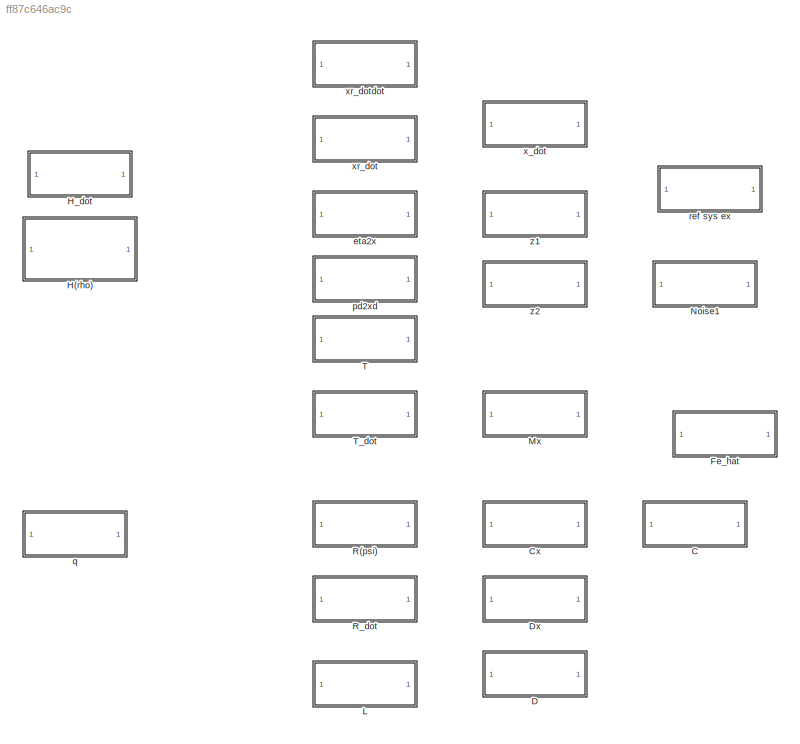
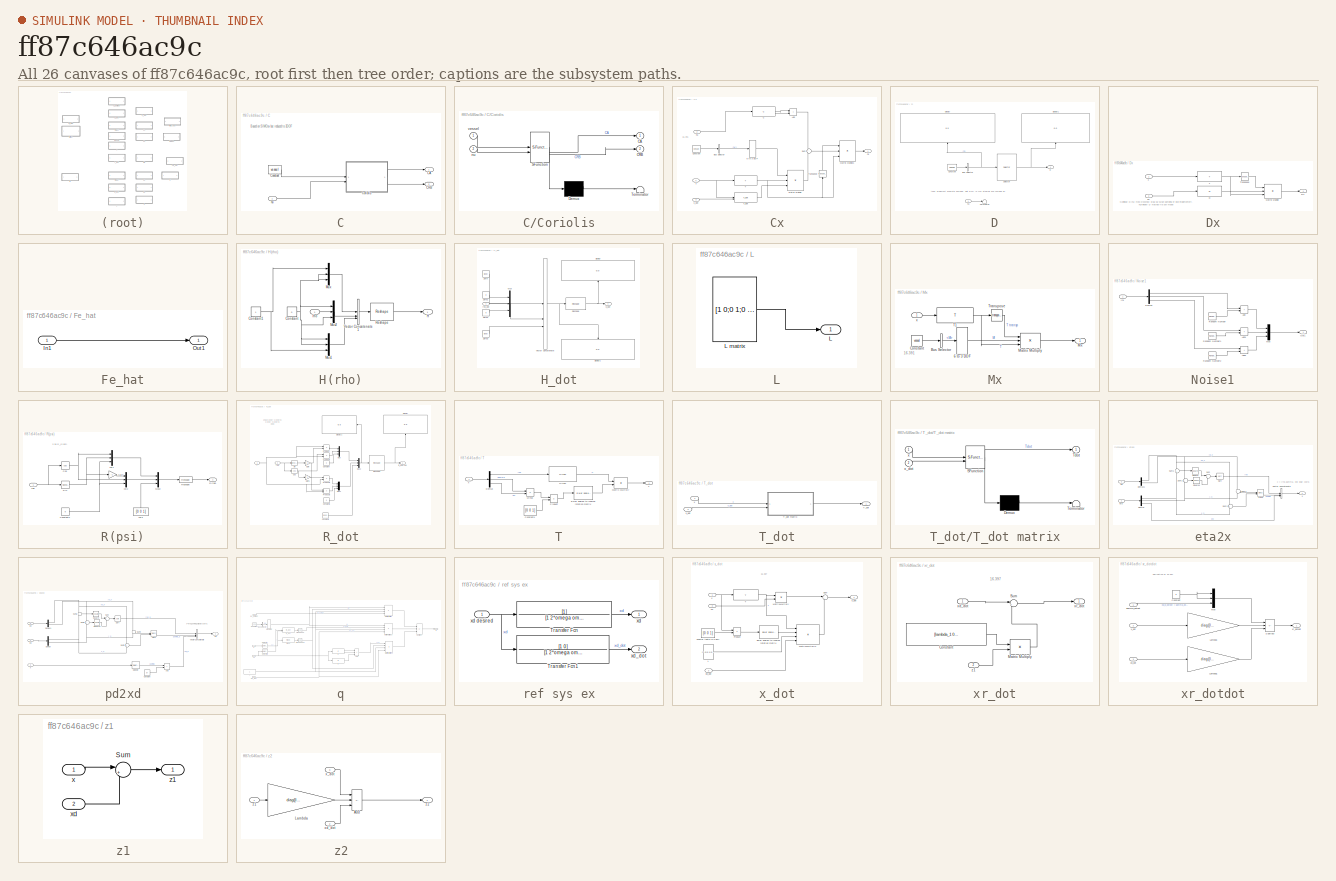
[diagram: thumbnail index - all 26 canvases of the model, root first then tree order]
MODEL slx_ff87c646ac9c
KIND library
CONFIG AbsTol = auto
CONFIG EnableMultiTasking = off
CONFIG FixedStep = auto
CONFIG MaxStep = auto
CONFIG MinStep = auto
CONFIG RelTol = 1e-3
CONFIG SampleTimeConstraint = Unconstrained
CONFIG SolverName = VariableStepAuto
CONFIG StartTime = 0.0
CONFIG StopTime = 10.0
BLOCK [SubSystem] C
BLOCK [Outport] C/CA
BLOCK [Outport] C/CRB
  Port = 2
BLOCK [Constant] C/Constant
  OutDataTypeStr = Bus: slBus1
  Value = vessel
BLOCK [SubSystem] C/Coriolis
  ErrorFcn = Stateflow.Translate.translate
  PermitHierarchicalResolution = ExplicitOnly
  SFBlockType = MATLAB Function
  TreatAsAtomicUnit = on
BLOCK [Demux] C/Coriolis/ Demux 
  Outputs = 1
BLOCK [S-Function] C/Coriolis/ SFunction 
  EnableBusSupport = off
  FunctionName = sf_sfun
  PortCounts = [2 3]
  SFcnIsStateOwnerBlock = off
  SFunctionDeploymentMode = off
  Tag = Stateflow S-Function 2
BLOCK [Terminator] C/Coriolis/ Terminator 
BLOCK [Outport] C/Coriolis/CA
BLOCK [Outport] C/Coriolis/CRB
  Port = 2
BLOCK [Inport] C/Coriolis/nu
  Port = 2
BLOCK [Inport] C/Coriolis/vessel
BLOCK [Inport] C/nu
BLOCK [SubSystem] Cx
BLOCK [Reference] Cx/ T  REF=$bdroot/T
  SourceBlock = $bdroot/T
  SourceType = SubSystem
BLOCK [Selector] Cx/6 to 3 DOF
  IndexOptions = Index vector (dialog),Index vector (dialog)
  Indices = [1 2 6],[1 2 6]
  InputPortWidth = 6
  NumberOfDimensions = 2
  OutputSizes = 1,1
BLOCK [Sum] Cx/Add
  IconShape = rectangular
BLOCK [BusSelector] Cx/Bus Selector
  OutputSignals = M
BLOCK [Reference] Cx/C  REF=$bdroot/C
  SourceBlock = $bdroot/C
  SourceType = SubSystem
BLOCK [Constant] Cx/Constant
  OutDataTypeStr = Bus: slBus1
  Value = vessel
BLOCK [Outport] Cx/Cx
BLOCK [Product] Cx/Matrix Multiply
  Inputs = */*
  Multiplication = Matrix(*)
BLOCK [Product] Cx/Matrix Multiply1
  Inputs = /*/
  Multiplication = Matrix(*)
BLOCK [Sum] Cx/Sum
  Inputs = +-
BLOCK [Reference] Cx/T_dot  REF=$bdroot/T_dot
  SourceBlock = $bdroot/T_dot
  SourceType = SubSystem
BLOCK [Math] Cx/Transpose
  NameLocation = right
  Operator = transpose
BLOCK [Inport] Cx/nu
  Port = 2
  PortDimensions = 3
BLOCK [Inport] Cx/x
BLOCK [Inport] Cx/x_dot
  Port = 3
BLOCK [SubSystem] D
BLOCK [BusSelector] D/Bus Selector
  OutputSignals = D
BLOCK [Constant] D/Constant
  OutDataTypeStr = Bus: slBus1
  Value = vessel
BLOCK [Outport] D/D
BLOCK [Display] D/Display
  Decimation = 1
  NameLocation = right
BLOCK [Display] D/Display1
  Decimation = 1
  NameLocation = right
BLOCK [Selector] D/Selector
  IndexOptions = Index vector (dialog),Index vector (dialog)
  Indices = [1 2 6],[1 2 6]
  InputPortWidth = 3
  NumberOfDimensions = 2
  OutputSizes = 1,1
BLOCK [Terminator] D/Terminator
BLOCK [Inport] D/nu
BLOCK [SubSystem] Dx
BLOCK [Reference] Dx/D  REF=$bdroot/D
  SourceBlock = $bdroot/D
  SourceType = SubSystem
BLOCK [Outport] Dx/Dx
BLOCK [Product] Dx/Matrix Multiply
  Inputs = /*/
  Multiplication = Matrix(*)
BLOCK [Reference] Dx/T  REF=$bdroot/T
  SourceBlock = $bdroot/T
  SourceType = SubSystem
BLOCK [Math] Dx/Transpose
  Operator = transpose
BLOCK [Inport] Dx/nu
  Port = 2
BLOCK [Inport] Dx/x
BLOCK [SubSystem] Fe_hat
BLOCK [Inport] Fe_hat/In1
BLOCK [Outport] Fe_hat/Out1
BLOCK [SubSystem] H(rho)
BLOCK [Constant] H(rho)/Constant
  Value = 0
BLOCK [Constant] H(rho)/Constant1
BLOCK [Outport] H(rho)/H
BLOCK [Mux] H(rho)/Mux
  DisplayOption = bar
  Inputs = 3
BLOCK [Mux] H(rho)/Mux1
  DisplayOption = bar
  Inputs = 3
BLOCK [Mux] H(rho)/Mux2
  DisplayOption = bar
  Inputs = 3
BLOCK [Reshape] H(rho)/Reshape
  OutputDimensionality = Customize
  OutputDimensions = [3,3]
BLOCK [Concatenate] H(rho)/Vector Concatenate1
  NumInputs = 3
BLOCK [Inport] H(rho)/rho
BLOCK [SubSystem] H_dot
BLOCK [Display] H_dot/Display
  Decimation = 1
  NameLocation = right
BLOCK [Display] H_dot/Display1
  Decimation = 1
  NameLocation = left
BLOCK [Outport] H_dot/H_dot
BLOCK [Mux] H_dot/Mux
  DisplayOption = bar
  Inputs = 3
BLOCK [Reshape] H_dot/Reshape
  OutputDimensionality = Customize
  OutputDimensions = [3,3]
BLOCK [Concatenate] H_dot/Vector Concatenate
  NumInputs = 3
BLOCK [Constant] H_dot/Zero
  OutDataTypeStr = Inherit: Inherit via back propagation
  Value = [0 0 0]
BLOCK [Constant] H_dot/Zero1
  OutDataTypeStr = Inherit: Inherit via back propagation
  Value = 0
BLOCK [Constant] H_dot/Zero2
  OutDataTypeStr = Inherit: Inherit via back propagation
  Value = 0
BLOCK [Constant] H_dot/Zero3
  OutDataTypeStr = Inherit: Inherit via back propagation
  Value = [0 0 0]
BLOCK [Inport] H_dot/rho_dot
BLOCK [SubSystem] L
BLOCK [Outport] L/L
BLOCK [Constant] L/L matrix
  Value = [1 0;0 1;0 0]
BLOCK [SubSystem] Mx
BLOCK [Selector] Mx/6 to 3 DOF
  IndexOptions = Index vector (dialog),Index vector (dialog)
  Indices = [1 2 6],[1 2 6]
  InputPortWidth = 6
  NumberOfDimensions = 2
  OutputSizes = 1,1
BLOCK [BusSelector] Mx/Bus Selector
  OutputSignals = M
BLOCK [Constant] Mx/Constant
  OutDataTypeStr = Bus: slBus1
  Value = vessel
BLOCK [Product] Mx/Matrix Multiply
  Inputs = /*/
  Multiplication = Matrix(*)
BLOCK [Outport] Mx/Mx
BLOCK [Reference] Mx/T1  REF=$bdroot/T
  SourceBlock = $bdroot/T
  SourceType = SubSystem
BLOCK [Math] Mx/Transpose
  Operator = transpose
BLOCK [Inport] Mx/x
BLOCK [SubSystem] Noise1
  NameLocation = top
BLOCK [Sum] Noise1/Add
  IconShape = rectangular
BLOCK [Sum] Noise1/Add1
  IconShape = rectangular
BLOCK [Sum] Noise1/Add2
  IconShape = rectangular
BLOCK [Demux] Noise1/Demux
  Outputs = 3
BLOCK [Inport] Noise1/In1
BLOCK [Mux] Noise1/Mux
  DisplayOption = bar
  Inputs = 3
BLOCK [Outport] Noise1/Out1
BLOCK [RandomNumber] Noise1/Random Number
  SampleTime = 0.1
  Variance = 0.0001^2
BLOCK [RandomNumber] Noise1/Random Number1
  SampleTime = 0.1
  Seed = 1
  Variance = 0.0001^2
BLOCK [RandomNumber] Noise1/Random Number2
  SampleTime = 0.1
  Seed = 2
  Variance = 0.0001^2
BLOCK [SubSystem] R(psi)
BLOCK [Constant] R(psi)/Constant1
  Value = 0
BLOCK [Trigonometry] R(psi)/Cos
  Operator = cos
BLOCK [Gain] R(psi)/Gain
  Gain = -1
BLOCK [Mux] R(psi)/Mux2
  DisplayOption = bar
  Inputs = 3
BLOCK [Outport] R(psi)/R(rad)
BLOCK [Reshape] R(psi)/Reshape
  OutputDimensionality = Customize
  OutputDimensions = [3,3]
BLOCK [Trigonometry] R(psi)/Sin
BLOCK [Mux] R(psi)/col1
  DisplayOption = bar
  Inputs = 3
BLOCK [Mux] R(psi)/col2
  DisplayOption = bar
  Inputs = 3
BLOCK [Constant] R(psi)/col3
  NameLocation = right
  Value = [0 0 1]
BLOCK [Inport] R(psi)/rad
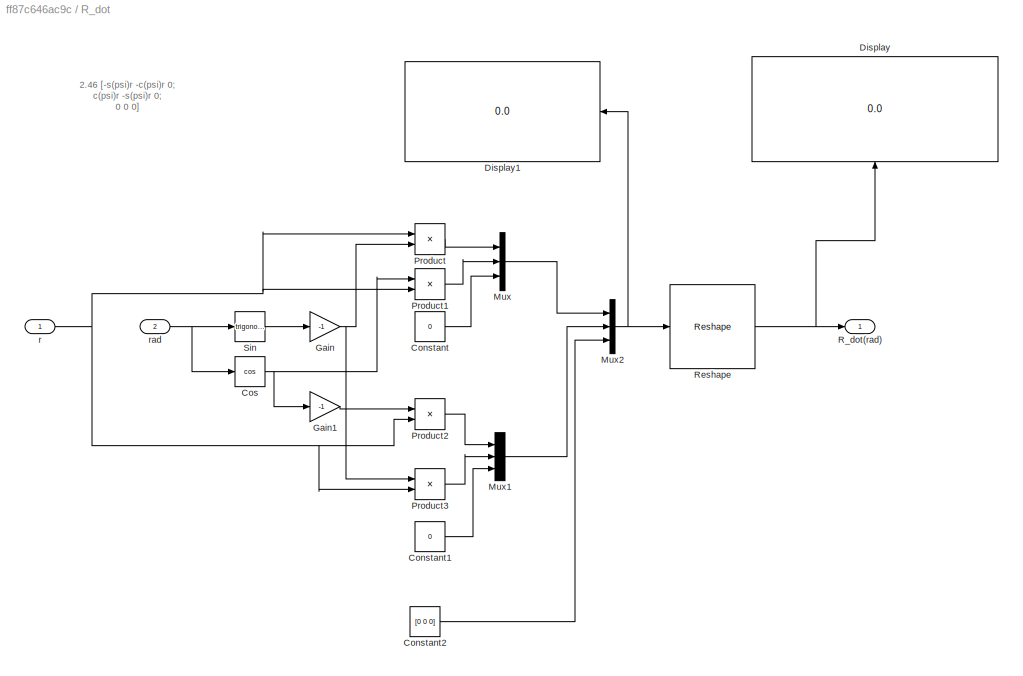
BLOCK [SubSystem] R_dot
BLOCK [Constant] R_dot/Constant
  Value = 0
BLOCK [Constant] R_dot/Constant1
  Value = 0
BLOCK [Constant] R_dot/Constant2
  Value = [0 0 0]
BLOCK [Trigonometry] R_dot/Cos
  Operator = cos
BLOCK [Display] R_dot/Display
  Decimation = 1
  NameLocation = right
BLOCK [Display] R_dot/Display1
  Decimation = 1
  NameLocation = top
BLOCK [Gain] R_dot/Gain
  Gain = -1
BLOCK [Gain] R_dot/Gain1
  Gain = -1
BLOCK [Mux] R_dot/Mux
  DisplayOption = bar
  Inputs = 3
BLOCK [Mux] R_dot/Mux1
  DisplayOption = bar
  Inputs = 3
BLOCK [Mux] R_dot/Mux2
  DisplayOption = bar
  Inputs = 3
BLOCK [Product] R_dot/Product
BLOCK [Product] R_dot/Product1
BLOCK [Product] R_dot/Product2
BLOCK [Product] R_dot/Product3
BLOCK [Outport] R_dot/R_dot(rad)
BLOCK [Reshape] R_dot/Reshape
  OutputDimensionality = Customize
  OutputDimensions = [3,3]
BLOCK [Trigonometry] R_dot/Sin
BLOCK [Inport] R_dot/r
BLOCK [Inport] R_dot/rad
  Port = 2
BLOCK [SubSystem] T
BLOCK [Constant] T/Constant1
  Value = [0 0 1]
BLOCK [Demux] T/Demux
  Outputs = 3
BLOCK [Reference] T/Euler angles to inverse rotation matrix  REF=mssSimulink/Modelling/Kinematics/Euler angles to
inverse rotation
matrix
  SourceBlock = mssSimulink/Modelling/Kinematics/Euler angles to\ninverse rotation\nmatrix
  SourceProductName = mss Toolbox
  SourceType = Rbn
BLOCK [Reference] T/H(rho)  REF=$bdroot/H(rho)
  SourceBlock = $bdroot/H(rho)
  SourceType = SubSystem
BLOCK [Product] T/Matrix Multiply
  Inputs = /*
  Multiplication = Matrix(*)
BLOCK [Sum] T/Minus
  IconShape = rectangular
  Inputs = +-
BLOCK [Product] T/Product
BLOCK [Outport] T/T
BLOCK [Inport] T/x
BLOCK [SubSystem] T_dot
BLOCK [Outport] T_dot/T_dot
BLOCK [SubSystem] T_dot/T_dot matrix
  ErrorFcn = Stateflow.Translate.translate
  PermitHierarchicalResolution = ExplicitOnly
  SFBlockType = MATLAB Function
  TreatAsAtomicUnit = on
BLOCK [Demux] T_dot/T_dot matrix/ Demux 
  Outputs = 1
BLOCK [S-Function] T_dot/T_dot matrix/ SFunction 
  EnableBusSupport = on
  FunctionName = sf_sfun
  PortCounts = [2 2]
  SFcnIsStateOwnerBlock = off
  SFunctionDeploymentMode = off
  Tag = Stateflow S-Function 1
BLOCK [Terminator] T_dot/T_dot matrix/ Terminator 
BLOCK [Outport] T_dot/T_dot matrix/Tdot
BLOCK [Inport] T_dot/T_dot matrix/x
BLOCK [Inport] T_dot/T_dot matrix/x_dot
  Port = 2
BLOCK [Inport] T_dot/x
BLOCK [Inport] T_dot/x_dot
  Port = 2
BLOCK [SubSystem] eta2x
BLOCK [Trigonometry] eta2x/Atan2
  Operator = atan2
BLOCK [Demux] eta2x/Demux
  Outputs = 3
BLOCK [Demux] eta2x/Demux1
  Outputs = 2
BLOCK [Sqrt] eta2x/Sqrt
BLOCK [Math] eta2x/Square
  Operator = square
BLOCK [Math] eta2x/Square1
  Operator = square
BLOCK [Sum] eta2x/Sum
  Inputs = |++
BLOCK [Sum] eta2x/Sum1
  Inputs = -+
BLOCK [Sum] eta2x/Sum2
  Inputs = -+
BLOCK [Sum] eta2x/Sum3
  Inputs = -+
BLOCK [Sum] eta2x/Sum4
  Inputs = -+
BLOCK [Concatenate] eta2x/Vector Concatenate
  NumInputs = 3
BLOCK [Inport] eta2x/eta
BLOCK [Inport] eta2x/p0
  Port = 2
BLOCK [Outport] eta2x/x
BLOCK [SubSystem] pd2xd
BLOCK [Sum] pd2xd/Add
  IconShape = rectangular
BLOCK [Trigonometry] pd2xd/Atan2
  Operator = atan2
BLOCK [Constant] pd2xd/Constant
  Value = pi
BLOCK [Demux] pd2xd/Demux
  Outputs = 2
BLOCK [Demux] pd2xd/Demux1
  Outputs = 2
BLOCK [Selector] pd2xd/Selector
  IndexOptions = Index vector (dialog)
  Indices = 3
  InputPortWidth = 3
  OutputSizes = 1
BLOCK [Sqrt] pd2xd/Sqrt
BLOCK [Math] pd2xd/Square
  Operator = square
BLOCK [Math] pd2xd/Square1
  Operator = square
BLOCK [Sum] pd2xd/Sum
  Inputs = |++
BLOCK [Sum] pd2xd/Sum1
  Inputs = -+
BLOCK [Sum] pd2xd/Sum2
  Inputs = -+
BLOCK [Sum] pd2xd/Sum3
  Inputs = -+
BLOCK [Sum] pd2xd/Sum4
  Inputs = -+
BLOCK [Concatenate] pd2xd/Vector Concatenate
  NumInputs = 3
BLOCK [Inport] pd2xd/p0
  Port = 2
BLOCK [Inport] pd2xd/pd
BLOCK [Inport] pd2xd/x
  Port = 3
BLOCK [Outport] pd2xd/xd
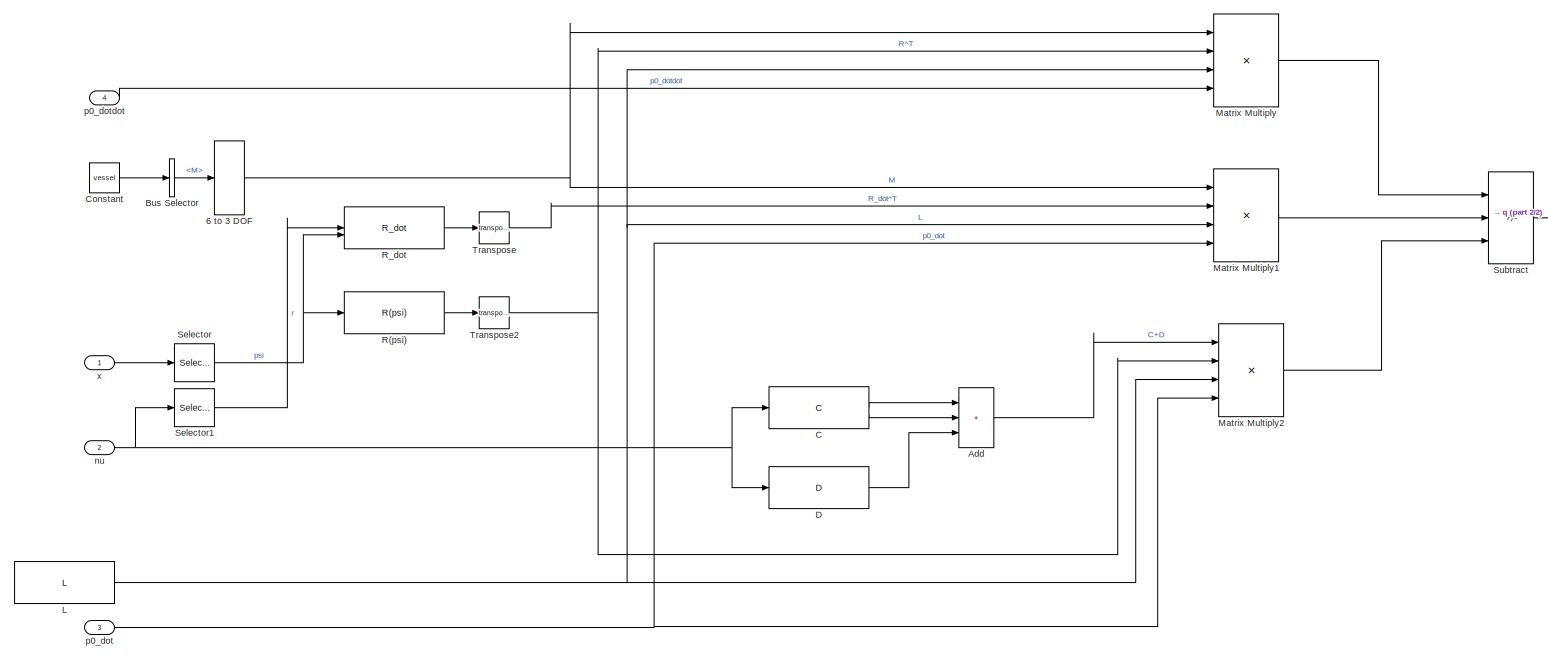
[diagram: q - part 1/2, most of the canvas]
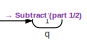
[diagram: q - part 2/2, middle right region]
BLOCK [SubSystem] q
BLOCK [Selector] q/6 to 3 DOF
  IndexOptions = Index vector (dialog),Index vector (dialog)
  Indices = [1 2 6],[1 2 6]
  InputPortWidth = 6
  NumberOfDimensions = 2
  OutputSizes = 1,1
BLOCK [Sum] q/Add
  IconShape = rectangular
  Inputs = +++
BLOCK [BusSelector] q/Bus Selector
  OutputSignals = M
BLOCK [Reference] q/C  REF=$bdroot/C
  SourceBlock = $bdroot/C
  SourceType = SubSystem
BLOCK [Constant] q/Constant
  OutDataTypeStr = Bus: slBus1
  Value = vessel
BLOCK [Reference] q/D  REF=$bdroot/D
  SourceBlock = $bdroot/D
  SourceType = SubSystem
BLOCK [Reference] q/L  REF=$bdroot/L
  SourceBlock = $bdroot/L
  SourceType = SubSystem
BLOCK [Product] q/Matrix Multiply
  Inputs = 4
  Multiplication = Matrix(*)
BLOCK [Product] q/Matrix Multiply1
  Inputs = 4
  Multiplication = Matrix(*)
BLOCK [Product] q/Matrix Multiply2
  Inputs = 4
  Multiplication = Matrix(*)
BLOCK [Reference] q/R(psi)  REF=$bdroot/R(psi)
  SourceBlock = $bdroot/R(psi)
  SourceType = SubSystem
BLOCK [Reference] q/R_dot  REF=$bdroot/R_dot
  SourceBlock = $bdroot/R_dot
  SourceType = SubSystem
BLOCK [Selector] q/Selector
  IndexOptions = Index vector (dialog)
  Indices = [3]
  InputPortWidth = 3
  OutputSizes = 1
BLOCK [Selector] q/Selector1
  IndexOptions = Index vector (dialog)
  Indices = [3]
  InputPortWidth = 3
  OutputSizes = 1
BLOCK [Sum] q/Subtract
  IconShape = rectangular
  Inputs = ---
BLOCK [Math] q/Transpose
  Operator = transpose
BLOCK [Math] q/Transpose2
  Operator = transpose
BLOCK [Inport] q/nu
  Port = 2
BLOCK [Inport] q/p0_dot
  Port = 3
BLOCK [Inport] q/p0_dotdot
  Port = 4
BLOCK [Outport] q/q
BLOCK [Inport] q/x
BLOCK [SubSystem] ref sys ex
BLOCK [TransferFcn] ref sys ex/Transfer Fcn
  Denominator = [1 2*omega omega^2]
BLOCK [TransferFcn] ref sys ex/Transfer Fcn1
  Denominator = [1 2*omega omega^2]
  Numerator = [1 0]
BLOCK [Outport] ref sys ex/xd
BLOCK [Inport] ref sys ex/xd desired
BLOCK [Outport] ref sys ex/xd_dot
  Port = 2
BLOCK [SubSystem] x_dot
BLOCK [Constant] x_dot/2vector theta [0 0 psi]
  Value = [0 0 1]
BLOCK [Reference] x_dot/Euler angles to inverse rotation matrix  REF=mssSimulink/Modelling/Kinematics/Euler angles to
inverse rotation
matrix
  SourceBlock = mssSimulink/Modelling/Kinematics/Euler angles to\ninverse rotation\nmatrix
  SourceProductName = mss Toolbox
  SourceType = Rbn
BLOCK [Constant] x_dot/L
  Value = [1 0;0 1;0 0]
BLOCK [Product] x_dot/MatrixMultiply
  Multiplication = Matrix(*)
BLOCK [Product] x_dot/MatrixMultiply1
  Inputs = 4
  Multiplication = Matrix(*)
BLOCK [Product] x_dot/Product
BLOCK [Sum] x_dot/Sum
  Inputs = |+-
BLOCK [Reference] x_dot/T  REF=$bdroot/T
  SourceBlock = $bdroot/T
  SourceType = SubSystem
BLOCK [Inport] x_dot/nu
  Port = 2
BLOCK [Inport] x_dot/p0_dot
  Port = 3
BLOCK [Inport] x_dot/x
BLOCK [Outport] x_dot/x_dot
BLOCK [SubSystem] xr_dot
BLOCK [Constant] xr_dot/Constant
  Value = [lambda_1 0 0;0 0 0;0 0 lambda_3]
BLOCK [Product] xr_dot/Matrix Multiply
  Multiplication = Matrix(*)
BLOCK [Sum] xr_dot/Sum
  Inputs = |+-
BLOCK [Inport] xr_dot/xd_dot
BLOCK [Outport] xr_dot/xr_dot
BLOCK [Inport] xr_dot/z1
  Port = 2
  PortDimensions = 3
BLOCK [SubSystem] xr_dotdot
BLOCK [Constant] xr_dotdot/Constant
  Value = 0
BLOCK [Gain] xr_dotdot/Lambda
  Gain = diag([lambda_1, 0, lambda_3])
  Multiplication = Matrix(K*u)
BLOCK [Gain] xr_dotdot/Lambda1
  Gain = diag([lambda_1, 0, lambda_3])
  Multiplication = Matrix(K*u)
BLOCK [Mux] xr_dotdot/Mux
  DisplayOption = bar
  Inputs = 3
BLOCK [Sum] xr_dotdot/Subtract
  IconShape = rectangular
  Inputs = +-+
BLOCK [Inport] xr_dotdot/gamma_dotdot
BLOCK [Inport] xr_dotdot/x_dot
  Port = 2
BLOCK [Inport] xr_dotdot/xd_dot
  Port = 3
BLOCK [Outport] xr_dotdot/xr_dotdot
BLOCK [SubSystem] z1
BLOCK [Sum] z1/Sum
  Inputs = |+-
BLOCK [Inport] z1/x
BLOCK [Inport] z1/xd
  Port = 2
BLOCK [Outport] z1/z1
BLOCK [SubSystem] z2
BLOCK [Sum] z2/Add
  IconShape = rectangular
  Inputs = ++-
BLOCK [Gain] z2/Lambda
  Gain = diag([lambda_1, 0, lambda_3])
  Multiplication = Matrix(K*u)
BLOCK [Inport] z2/x_dot
  Port = 3
BLOCK [Inport] z2/xd_dot
  Port = 2
BLOCK [Inport] z2/z1
BLOCK [Outport] z2/z2
ANNOTATION C: Based on SIMOsv but reduced to 3DOF
ANNOTATION Cx: 16.391
ANNOTATION D: todo: implement quadratic damping. Split d(nu) (6.116) integrals and combine with D
ANNOTATION Dx: Nonlinear D(nu) med crossflow drag og surge damping er ikke implementert. Kun lineær D matrise fra osv model
ANNOTATION Mx: 16.391
ANNOTATION R(psi): 2.28 R_{z,psi}
ANNOTATION R_dot: 2.46 [-s(psi)r -c(psi)r 0; c(psi)r -s(psi)r 0; 0 0 0]
ANNOTATION eta2x: x = [rho,gamma, psi] polar coord.
ANNOTATION pd2xd: x = [rho,gamma, psi] polar coord.
ANNOTATION x_dot: 16. 387
ANNOTATION xr_dot: 16.397
ANNOTATION xr_dotdot: derivative of 16.397
LINE C/Constant:1 -> C/Coriolis:1
LINE C/Coriolis:1 -> C/CA:1
LINE C/Coriolis:2 -> C/CRB:1
LINE C/nu:1 -> C/Coriolis:2
NET Cx/ T:1 -> Cx/Matrix Multiply1:3, Cx/Matrix Multiply:2, Cx/Transpose:1
LINE Cx/6 to 3 DOF:1 -> Cx/Matrix Multiply:1
LINE Cx/Add:1 -> Cx/Sum:1
LINE Cx/Bus Selector:1 -> Cx/6 to 3 DOF:1
LINE Cx/C:1 -> Cx/Add:1
LINE Cx/C:2 -> Cx/Add:2
LINE Cx/Constant:1 -> Cx/Bus Selector:1
LINE Cx/Matrix Multiply1:1 -> Cx/Cx:1
LINE Cx/Matrix Multiply:1 -> Cx/Sum:2
LINE Cx/Sum:1 -> Cx/Matrix Multiply1:2
LINE Cx/T_dot:1 -> Cx/Matrix Multiply:3
LINE Cx/Transpose:1 -> Cx/Matrix Multiply1:1
LINE Cx/nu:1 -> Cx/C:1
NET Cx/x:1 -> Cx/ T:1, Cx/T_dot:1
LINE Cx/x_dot:1 -> Cx/T_dot:2
NET D/Bus Selector:1 -> D/Display:1, D/Selector:1
LINE D/Constant:1 -> D/Bus Selector:1
NET D/Selector:1 -> D/D:1, D/Display1:1
LINE D/nu:1 -> D/Terminator:1
LINE Dx/D:1 -> Dx/Matrix Multiply:2
LINE Dx/Matrix Multiply:1 -> Dx/Dx:1
NET Dx/T:1 -> Dx/Matrix Multiply:3, Dx/Transpose:1
LINE Dx/Transpose:1 -> Dx/Matrix Multiply:1
LINE Dx/nu:1 -> Dx/D:1
LINE Dx/x:1 -> Dx/T:1
LINE Fe_hat/In1:1 -> Fe_hat/Out1:1
NET H(rho)/Constant1:1 -> H(rho)/Mux1:3, H(rho)/Mux:1
NET H(rho)/Constant:1 -> H(rho)/Mux1:1, H(rho)/Mux1:2, H(rho)/Mux2:1, H(rho)/Mux2:3, H(rho)/Mux:2, H(rho)/Mux:3
LINE H(rho)/Mux1:1 -> H(rho)/Vector Concatenate1:3
LINE H(rho)/Mux2:1 -> H(rho)/Vector Concatenate1:2
LINE H(rho)/Mux:1 -> H(rho)/Vector Concatenate1:1
LINE H(rho)/Reshape:1 -> H(rho)/H:1
LINE H(rho)/Vector Concatenate1:1 -> H(rho)/Reshape:1
LINE H(rho)/rho:1 -> H(rho)/Mux2:2
LINE H_dot/Mux:1 -> H_dot/Vector Concatenate:2
NET H_dot/Reshape:1 -> H_dot/Display:1, H_dot/H_dot:1
NET H_dot/Vector Concatenate:1 -> H_dot/Display1:1, H_dot/Reshape:1
LINE H_dot/Zero1:1 -> H_dot/Mux:1
LINE H_dot/Zero2:1 -> H_dot/Mux:3
LINE H_dot/Zero3:1 -> H_dot/Vector Concatenate:3
LINE H_dot/Zero:1 -> H_dot/Vector Concatenate:1
LINE H_dot/rho_dot:1 -> H_dot/Mux:2
LINE L/L matrix:1 -> L/L:1
LINE Mx/6 to 3 DOF:1 -> Mx/Matrix Multiply:2
LINE Mx/Bus Selector:1 -> Mx/6 to 3 DOF:1
LINE Mx/Constant:1 -> Mx/Bus Selector:1
LINE Mx/Matrix Multiply:1 -> Mx/Mx:1
NET Mx/T1:1 -> Mx/Matrix Multiply:3, Mx/Transpose:1
LINE Mx/Transpose:1 -> Mx/Matrix Multiply:1
LINE Mx/x:1 -> Mx/T1:1
LINE Noise1/Add1:1 -> Noise1/Mux:2
LINE Noise1/Add2:1 -> Noise1/Mux:3
LINE Noise1/Add:1 -> Noise1/Mux:1
LINE Noise1/Demux:1 -> Noise1/Add:1
LINE Noise1/Demux:2 -> Noise1/Add1:1
LINE Noise1/Demux:3 -> Noise1/Add2:1
LINE Noise1/In1:1 -> Noise1/Demux:1
LINE Noise1/Mux:1 -> Noise1/Out1:1
LINE Noise1/Random Number1:1 -> Noise1/Add1:2
LINE Noise1/Random Number2:1 -> Noise1/Add2:2
LINE Noise1/Random Number:1 -> Noise1/Add:2
NET R(psi)/Constant1:1 -> R(psi)/col1:3, R(psi)/col2:3
NET R(psi)/Cos:1 -> R(psi)/col1:1, R(psi)/col2:2
LINE R(psi)/Gain:1 -> R(psi)/col2:1
LINE R(psi)/Mux2:1 -> R(psi)/Reshape:1
LINE R(psi)/Reshape:1 -> R(psi)/R(rad):1
NET R(psi)/Sin:1 -> R(psi)/Gain:1, R(psi)/col1:2
LINE R(psi)/col1:1 -> R(psi)/Mux2:1
LINE R(psi)/col2:1 -> R(psi)/Mux2:2
LINE R(psi)/col3:1 -> R(psi)/Mux2:3
NET R(psi)/rad:1 -> R(psi)/Cos:1, R(psi)/Sin:1
LINE R_dot/Constant1:1 -> R_dot/Mux1:3
LINE R_dot/Constant2:1 -> R_dot/Mux2:3
LINE R_dot/Constant:1 -> R_dot/Mux:3
NET R_dot/Cos:1 -> R_dot/Gain1:1, R_dot/Product1:1
LINE R_dot/Gain1:1 -> R_dot/Product2:1
NET R_dot/Gain:1 -> R_dot/Product3:1, R_dot/Product:2
LINE R_dot/Mux1:1 -> R_dot/Mux2:2
NET R_dot/Mux2:1 -> R_dot/Display1:1, R_dot/Reshape:1
LINE R_dot/Mux:1 -> R_dot/Mux2:1
LINE R_dot/Product1:1 -> R_dot/Mux:2
LINE R_dot/Product2:1 -> R_dot/Mux1:1
LINE R_dot/Product3:1 -> R_dot/Mux1:2
LINE R_dot/Product:1 -> R_dot/Mux:1
NET R_dot/Reshape:1 -> R_dot/Display:1, R_dot/R_dot(rad):1
LINE R_dot/Sin:1 -> R_dot/Gain:1
NET R_dot/r:1 -> R_dot/Product1:2, R_dot/Product2:2, R_dot/Product3:2, R_dot/Product:1
NET R_dot/rad:1 -> R_dot/Cos:1, R_dot/Sin:1
LINE T/Constant1:1 -> T/Product:2
LINE T/Demux:1 -> T/H(rho):1
LINE T/Demux:2 -> T/Minus:1
LINE T/Demux:3 -> T/Minus:2
LINE T/Euler angles to inverse rotation matrix:1 -> T/Matrix Multiply:2
LINE T/H(rho):1 -> T/Matrix Multiply:1
LINE T/Matrix Multiply:1 -> T/T:1
LINE T/Minus:1 -> T/Product:1
LINE T/Product:1 -> T/Euler angles to inverse rotation matrix:1
LINE T/x:1 -> T/Demux:1
LINE T_dot/T_dot matrix:1 -> T_dot/T_dot:1
LINE T_dot/x:1 -> T_dot/T_dot matrix:1
LINE T_dot/x_dot:1 -> T_dot/T_dot matrix:2
LINE eta2x/Atan2:1 -> eta2x/Vector Concatenate:2
NET eta2x/Demux1:1 -> eta2x/Sum1:1, eta2x/Sum3:1
NET eta2x/Demux1:2 -> eta2x/Sum2:1, eta2x/Sum4:1
NET eta2x/Demux:1 -> eta2x/Sum1:2, eta2x/Sum3:2
NET eta2x/Demux:2 -> eta2x/Sum2:2, eta2x/Sum4:2
LINE eta2x/Demux:3 -> eta2x/Vector Concatenate:3
LINE eta2x/Sqrt:1 -> eta2x/Vector Concatenate:1
LINE eta2x/Square1:1 -> eta2x/Sum:2
LINE eta2x/Square:1 -> eta2x/Sum:1
LINE eta2x/Sum1:1 -> eta2x/Square:1
LINE eta2x/Sum2:1 -> eta2x/Square1:1
LINE eta2x/Sum3:1 -> eta2x/Atan2:2
LINE eta2x/Sum4:1 -> eta2x/Atan2:1
LINE eta2x/Sum:1 -> eta2x/Sqrt:1
LINE eta2x/Vector Concatenate:1 -> eta2x/x:1
LINE eta2x/eta:1 -> eta2x/Demux:1
LINE eta2x/p0:1 -> eta2x/Demux1:1
LINE pd2xd/Add:1 -> pd2xd/Vector Concatenate:3
LINE pd2xd/Atan2:1 -> pd2xd/Vector Concatenate:2
LINE pd2xd/Constant:1 -> pd2xd/Add:2
NET pd2xd/Demux1:1 -> pd2xd/Sum1:1, pd2xd/Sum3:1
NET pd2xd/Demux1:2 -> pd2xd/Sum2:1, pd2xd/Sum4:1
NET pd2xd/Demux:1 -> pd2xd/Sum1:2, pd2xd/Sum3:2
NET pd2xd/Demux:2 -> pd2xd/Sum2:2, pd2xd/Sum4:2
LINE pd2xd/Selector:1 -> pd2xd/Add:1
LINE pd2xd/Sqrt:1 -> pd2xd/Vector Concatenate:1
LINE pd2xd/Square1:1 -> pd2xd/Sum:2
LINE pd2xd/Square:1 -> pd2xd/Sum:1
LINE pd2xd/Sum1:1 -> pd2xd/Square:1
LINE pd2xd/Sum2:1 -> pd2xd/Square1:1
LINE pd2xd/Sum3:1 -> pd2xd/Atan2:2
LINE pd2xd/Sum4:1 -> pd2xd/Atan2:1
LINE pd2xd/Sum:1 -> pd2xd/Sqrt:1
LINE pd2xd/Vector Concatenate:1 -> pd2xd/xd:1
LINE pd2xd/p0:1 -> pd2xd/Demux1:1
LINE pd2xd/pd:1 -> pd2xd/Demux:1
LINE pd2xd/x:1 -> pd2xd/Selector:1
NET q/6 to 3 DOF:1 -> q/Matrix Multiply1:1, q/Matrix Multiply:1
LINE q/Add:1 -> q/Matrix Multiply2:1
LINE q/Bus Selector:1 -> q/6 to 3 DOF:1
LINE q/C:1 -> q/Add:1
LINE q/C:2 -> q/Add:2
LINE q/Constant:1 -> q/Bus Selector:1
LINE q/D:1 -> q/Add:3
NET q/L:1 -> q/Matrix Multiply1:3, q/Matrix Multiply2:3, q/Matrix Multiply:3
LINE q/Matrix Multiply1:1 -> q/Subtract:2
LINE q/Matrix Multiply2:1 -> q/Subtract:3
LINE q/Matrix Multiply:1 -> q/Subtract:1
LINE q/R(psi):1 -> q/Transpose2:1
LINE q/R_dot:1 -> q/Transpose:1
LINE q/Selector1:1 -> q/R_dot:1
NET q/Selector:1 -> q/R(psi):1, q/R_dot:2
LINE q/Subtract:1 -> q/q:1
NET q/Transpose2:1 -> q/Matrix Multiply2:2, q/Matrix Multiply:2
LINE q/Transpose:1 -> q/Matrix Multiply1:2
NET q/nu:1 -> q/C:1, q/D:1, q/Selector1:1
NET q/p0_dot:1 -> q/Matrix Multiply1:4, q/Matrix Multiply2:4
LINE q/p0_dotdot:1 -> q/Matrix Multiply:4
LINE q/x:1 -> q/Selector:1
LINE ref sys ex/Transfer Fcn1:1 -> ref sys ex/xd_dot:1
LINE ref sys ex/Transfer Fcn:1 -> ref sys ex/xd:1
NET ref sys ex/xd desired:1 -> ref sys ex/Transfer Fcn1:1, ref sys ex/Transfer Fcn:1
LINE x_dot/2vector theta [0 0 psi]:1 -> x_dot/Product:2
LINE x_dot/Euler angles to inverse rotation matrix:1 -> x_dot/MatrixMultiply1:2
LINE x_dot/L:1 -> x_dot/MatrixMultiply1:3
LINE x_dot/MatrixMultiply1:1 -> x_dot/Sum:2
LINE x_dot/MatrixMultiply:1 -> x_dot/Sum:1
LINE x_dot/Product:1 -> x_dot/Euler angles to inverse rotation matrix:1
LINE x_dot/Sum:1 -> x_dot/x_dot:1
NET x_dot/T:1 -> x_dot/MatrixMultiply1:1, x_dot/MatrixMultiply:1
LINE x_dot/nu:1 -> x_dot/MatrixMultiply:2
LINE x_dot/p0_dot:1 -> x_dot/MatrixMultiply1:4
NET x_dot/x:1 -> x_dot/Product:1, x_dot/T:1
LINE xr_dot/Constant:1 -> xr_dot/Matrix Multiply:1
LINE xr_dot/Matrix Multiply:1 -> xr_dot/Sum:2
LINE xr_dot/Sum:1 -> xr_dot/xr_dot:1
LINE xr_dot/xd_dot:1 -> xr_dot/Sum:1
LINE xr_dot/z1:1 -> xr_dot/Matrix Multiply:2
NET xr_dotdot/Constant:1 -> xr_dotdot/Mux:1, xr_dotdot/Mux:2
LINE xr_dotdot/Lambda1:1 -> xr_dotdot/Subtract:3
LINE xr_dotdot/Lambda:1 -> xr_dotdot/Subtract:2
LINE xr_dotdot/Mux:1 -> xr_dotdot/Subtract:1
LINE xr_dotdot/Subtract:1 -> xr_dotdot/xr_dotdot:1
LINE xr_dotdot/gamma_dotdot:1 -> xr_dotdot/Mux:3
LINE xr_dotdot/x_dot:1 -> xr_dotdot/Lambda:1
LINE xr_dotdot/xd_dot:1 -> xr_dotdot/Lambda1:1
LINE z1/Sum:1 -> z1/z1:1
LINE z1/x:1 -> z1/Sum:1
LINE z1/xd:1 -> z1/Sum:2
LINE z2/Add:1 -> z2/z2:1
LINE z2/Lambda:1 -> z2/Add:2
LINE z2/x_dot:1 -> z2/Add:1
LINE z2/xd_dot:1 -> z2/Add:3
LINE z2/z1:1 -> z2/Lambda:1
note: NET lines group one-source signal fan-out (src -> all destinations, sorted); 1:1 wires keep LINE
CHART C/Coriolis states=1 transitions=1
  STATE_LABEL 'eML_blk_kernel()'
  STATE_LABEL "SCRIPT:\nfunction [CA, CRB]  = fcn(vessel,nu)\n\n% CRB is only dependant on angular velocities nu2\nnu2 = [0 0 nu(3)]';\n\n% Coriolis matrices\n[~,CRB6DOF] = rbody(vessel.m,vessel.R44,vessel.R55,vessel.R66,nu2,vessel.r_bg'); \n\n% Controller uses only 3DOF\nCRB = CRB6DOF([1 2 6], [1 2 6]);\n\nMA = vessel.MA([1 2 6], [1 2 6]);\nCA  = m2c(MA, nu);"
CHART T_dot/T_dot matrix states=1 transitions=1
  STATE_LABEL 'eML_blk_kernel()'
  STATE_LABEL 'SCRIPT:\nfunction Tdot = fcn(x,x_dot)\n% T_dot matrix derived for x = (rho,gamma,psi)\n% see p619\n\na = x(3) - x(2);\nrho = x(1);\n\n%dT/drho\ndTdr21 = sin(a)/rho^2;\ndTdr22 = cos(a)/rho^2;\n\ndTdrho = [    0,          0,            0;\n            dTdr21,     dTdr22,         0;\n              0,          0,            0];\n\n% dT/dgamma\ndTdg11 = -sin(a);\ndTdg12 = cos(a);\ndTdg21 = -cos(a)/rho;\ndTdg22 = -sin(a)/r...<+327ch>'
CHART  states=0 transitions=0
CHART  states=0 transitions=0
